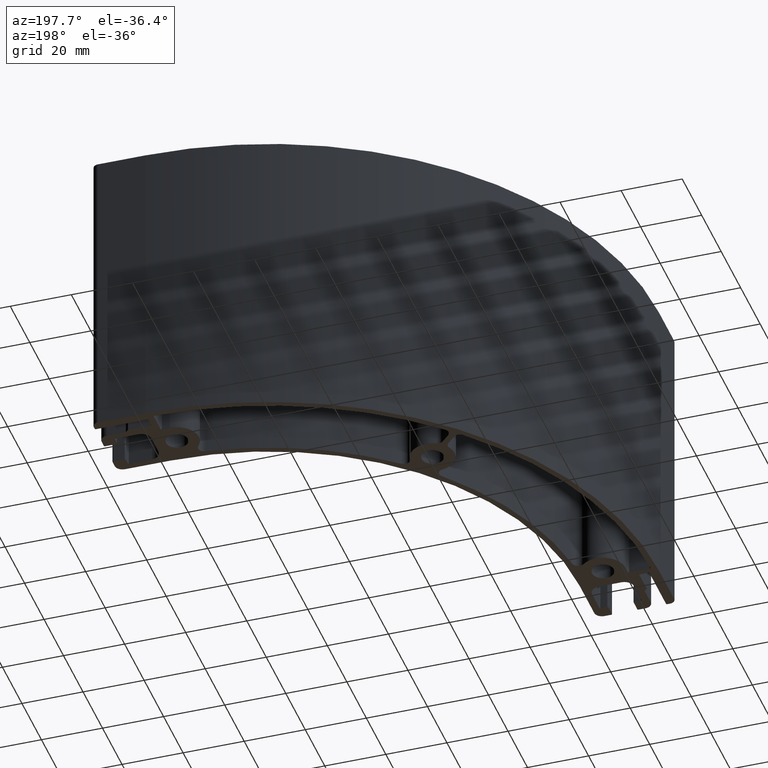
[diagram: clean part render]
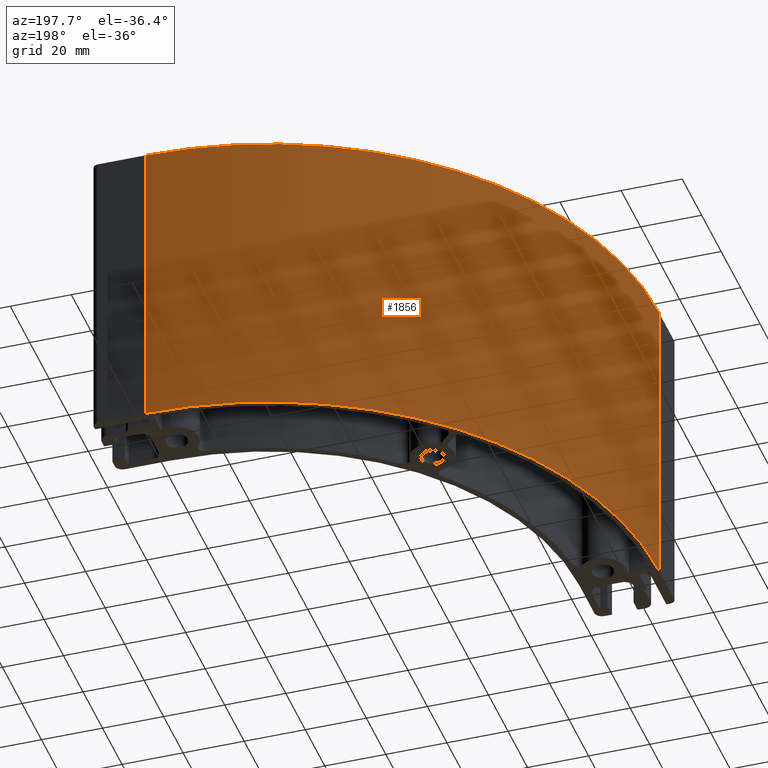
[diagram: same view with one face highlighted and labeled with its STEP entity id]
A machine part, auxiliary view. The second image highlights one B-rep face of the part: STEP entity #1856.
In plain terms, the highlighted cylindrical surface (partial cylindrical patch) has radius 127.5 mm, axis along (0, 0, 1).
Its self-contained STEP definition (entity closure, byte-faithful):
#128=FACE_OUTER_BOUND('',#223,.T.);
#223=EDGE_LOOP('',(#1428,#1429,#1430,#1431));
#374=LINE('',#3057,#547);
#375=LINE('',#3063,#548);
#547=VECTOR('',#2494,10.);
#548=VECTOR('',#2501,10.);
#689=CIRCLE('',#2048,127.5);
#690=CIRCLE('',#2049,127.5);
#841=VERTEX_POINT('',#3053);
#842=VERTEX_POINT('',#3055);
#843=VERTEX_POINT('',#3059);
#844=VERTEX_POINT('',#3061);
#1088=EDGE_CURVE('',#841,#842,#374,.T.);
#1089=EDGE_CURVE('',#843,#841,#689,.T.);
#1090=EDGE_CURVE('',#844,#842,#690,.T.);
#1091=EDGE_CURVE('',#843,#844,#375,.T.);
#1428=ORIENTED_EDGE('',*,*,#1089,.T.);
#1429=ORIENTED_EDGE('',*,*,#1088,.T.);
#1430=ORIENTED_EDGE('',*,*,#1090,.F.);
#1431=ORIENTED_EDGE('',*,*,#1091,.F.);
#1780=CYLINDRICAL_SURFACE('',#2047,127.5);
#1856=ADVANCED_FACE('',(#128),#1780,.T.);
#2047=AXIS2_PLACEMENT_3D('',#3058,#2495,#2496);
#2048=AXIS2_PLACEMENT_3D('',#3060,#2497,#2498);
#2049=AXIS2_PLACEMENT_3D('',#3062,#2499,#2500);
#2494=DIRECTION('',(0.,0.,1.));
#2495=DIRECTION('center_axis',(0.,0.,1.));
#2496=DIRECTION('ref_axis',(0.,1.,0.));
#2497=DIRECTION('center_axis',(0.,0.,1.));
#2498=DIRECTION('ref_axis',(0.,1.,0.));
#2499=DIRECTION('center_axis',(0.,0.,1.));
#2500=DIRECTION('ref_axis',(0.,1.,0.));
#2501=DIRECTION('',(0.,0.,1.));
#3053=CARTESIAN_POINT('',(-49.1081557175748,-78.3918442824252,0.));
#3055=CARTESIAN_POINT('',(-49.1081557175748,-78.3918442824252,100.));
#3057=CARTESIAN_POINT('',(-49.1081557175748,-78.3918442824252,0.));
#3058=CARTESIAN_POINT('Origin',(78.3918442824252,-78.3918442824252,0.));
#3059=CARTESIAN_POINT('',(78.3918442824252,49.1081557175748,0.));
#3060=CARTESIAN_POINT('Origin',(78.3918442824252,-78.3918442824252,0.));
#3061=CARTESIAN_POINT('',(78.3918442824252,49.1081557175748,100.));
#3062=CARTESIAN_POINT('Origin',(78.3918442824252,-78.3918442824252,100.));
#3063=CARTESIAN_POINT('',(78.3918442824252,49.1081557175748,0.));